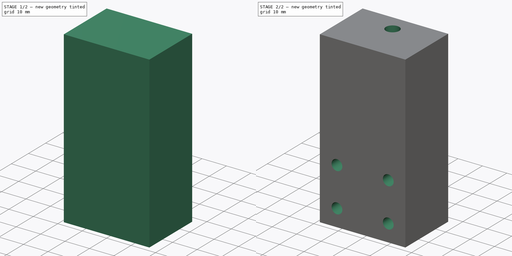
[diagram: build sequence overview — one tinted view per stage of 2, left to right]
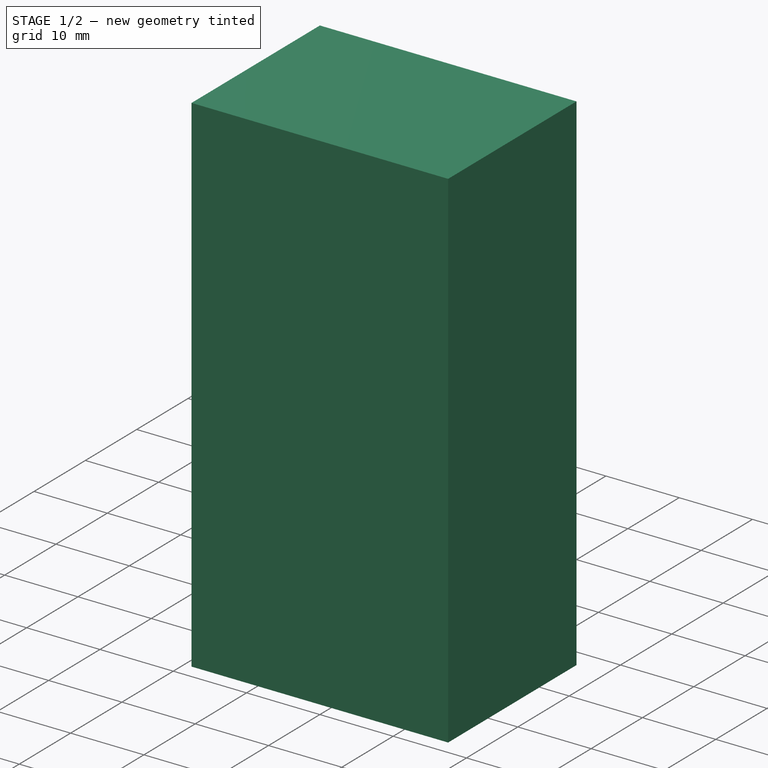
[diagram: stage 1 of 2 — iso view after this stage's code; geometry added in this stage tinted green]
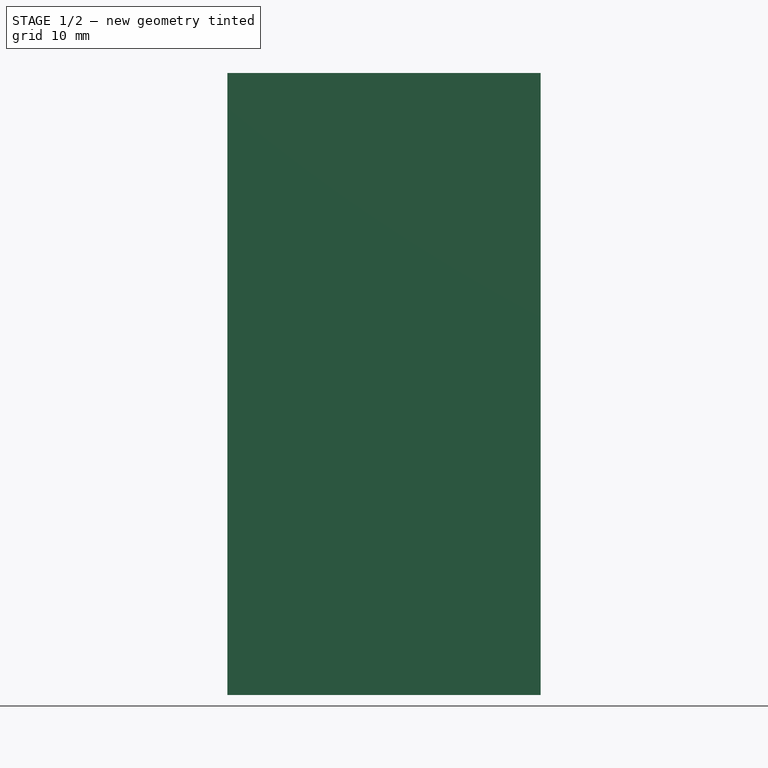
[diagram: stage 1 of 2 — front view after this stage's code; geometry added in this stage tinted green]
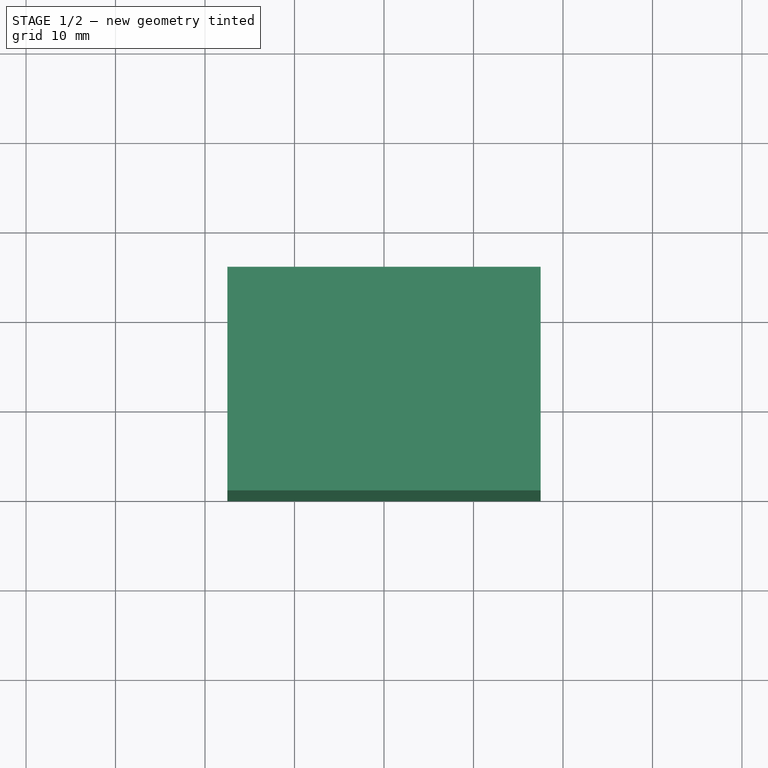
[diagram: stage 1 of 2 — top view after this stage's code; geometry added in this stage tinted green]
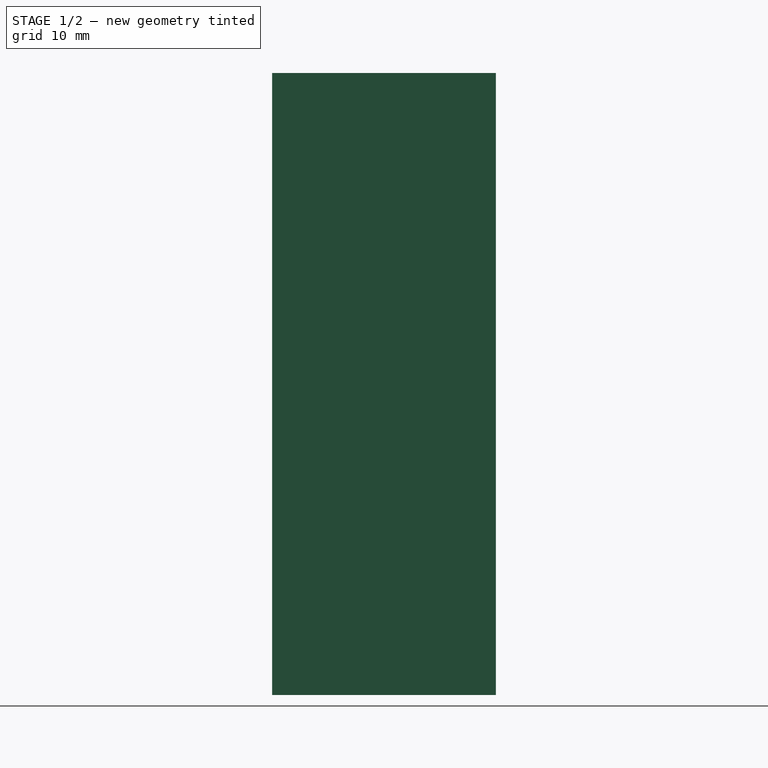
[diagram: stage 1 of 2 — right view after this stage's code; geometry added in this stage tinted green]
FCSTD DOCUMENT  (FreeCAD 0.18.4R)
Label: part7
License: All rights reserved
LicenseURL: http://en.wikipedia.org/wiki/All_rights_reserved
objects: Sketcher::SketchObject×4, PartDesign::Hole×2, PartDesign::Pad×1, PartDesign::Pocket×1, PartDesign::Body×1, App::Part×1
note: 13 computed .brp shape members not serialized (recipe doc carries the construction recipe); baked Part::Feature solids carry a one-line shape summary decoded from their .brp

FEATURE [Sketcher::SketchObject] Sketch
  MapMode = 5
  Placement = pos=(0,0,0) rot=(0.57735,0.57735,0.57735;2.0944rad)
  Support = -> [YZ_Plane001]
  sketch-geometry (4):
    g0: LineSegment StartX=30 StartY=-10 StartZ=0 EndX=30 EndY=-79.5 EndZ=0
    g1: LineSegment StartX=30 StartY=-79.5 StartZ=0 EndX=55 EndY=-79.5 EndZ=0
    g2: LineSegment StartX=55 StartY=-79.5 StartZ=0 EndX=55 EndY=-10 EndZ=0
    g3: LineSegment StartX=55 StartY=-10 StartZ=0 EndX=30 EndY=-10 EndZ=0
  constraints (12):
    c: Vertical(g0)
    c: Horizontal(g1)
    c: Vertical(g2)
    c: Horizontal(g3)
    c: Coincident(g0,g3)
    c: Coincident(g3,g2)
    c: Coincident(g1,g0)
    c: Coincident(g1,g2)
    c: DistanceX(g-1,g0) = 30
    c: DistanceX(g-1,g2) = 55
    c: DistanceY(g0,g-1) = 10
    c: DistanceY(g1,g-1) = 79.5
FEATURE [PartDesign::Pad] Pad
  Length = 35
  Length2 = 100
  Midplane = true
  Placement = pos=(0,0,0) rot=(0.57735,0.57735,0.57735;2.0944rad)
  Profile = -> Sketch
  Type = 0
FEATURE [Sketcher::SketchObject] Sketch002
  AttachmentOffset = pos=(0,0,-8) rot=(0,0,1;0rad)
  MapMode = 5
  Placement = pos=(1.3e-14,-1.2e-14,-18) rot=(0,0,-1;1.5708rad)
  sketch-geometry (5):
    g0: LineSegment StartX=-55 StartY=-4.25 StartZ=0 EndX=-55 EndY=4.25 EndZ=0
    g1: LineSegment StartX=-55 StartY=4.25 StartZ=0 EndX=-45.0463 EndY=4.25 EndZ=0
    g2: LineSegment StartX=-45.0463 StartY=4.25 StartZ=0 EndX=-42.5925 EndY=0 EndZ=0
    g3: LineSegment StartX=-42.5925 StartY=0 StartZ=0 EndX=-45.0463 EndY=-4.25 EndZ=0
    g4: LineSegment StartX=-45.0463 StartY=-4.25 StartZ=0 EndX=-55 EndY=-4.25 EndZ=0
  constraints (13):
    c: Coincident(g0,g1)
    c: Horizontal(g1)
    c: Coincident(g1,g2)
    c: Coincident(g2,g3)
    c: Coincident(g3,g4)
    c: Coincident(g4,g0)
    c: Symmetric(g0,g0,g-1)
    c: PointOnObject(g2,g-1)
    c: Symmetric(g1,g3,g-1)
    c: Angle(g1,g2) = 2.0944
    c: DistanceY(g0,g0) = 8.5
    c: DistanceX(g0,g-1) = 55
    c: DistanceX(g0,g2) = 12.4075
FEATURE [PartDesign::Pocket] Pocket
  BaseFeature = -> Pad
  Length = 4.5
  Length2 = 100
  Placement = pos=(0,0,0) rot=(0.57735,0.57735,0.57735;2.0944rad)
  Profile = -> Sketch002
  Type = 0
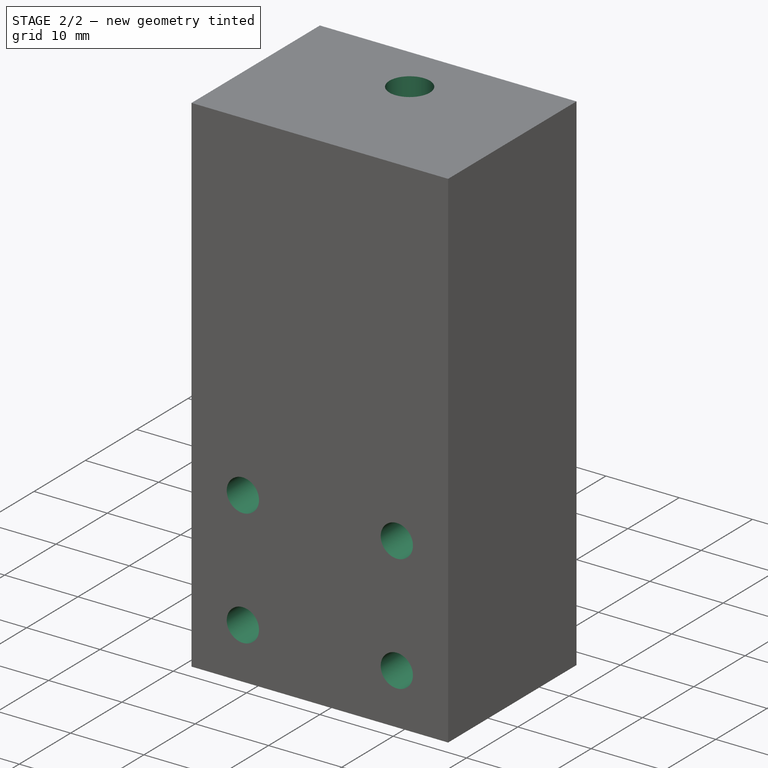
[diagram: stage 2 of 2 — iso view after this stage's code; geometry added in this stage tinted green]
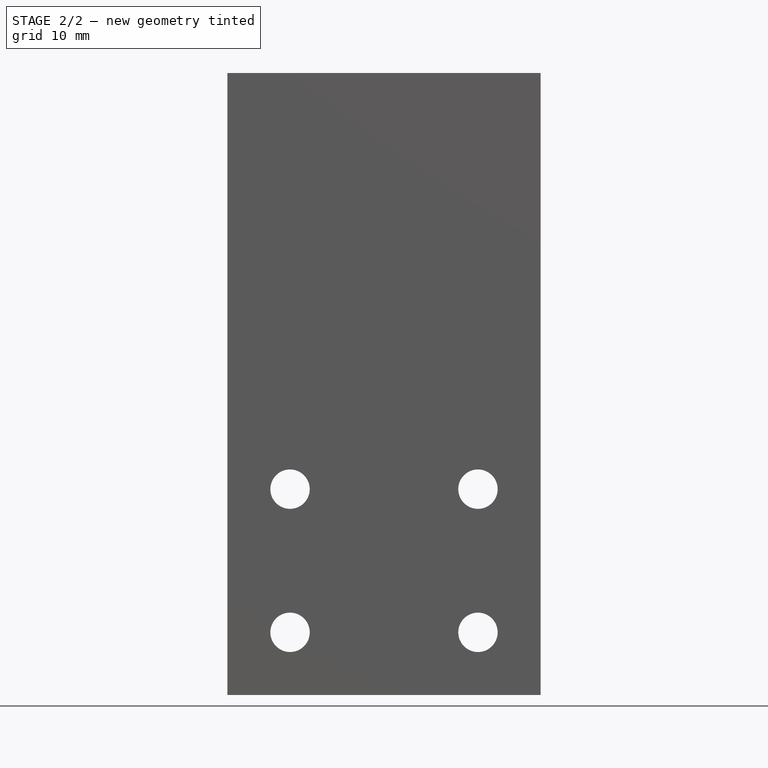
[diagram: stage 2 of 2 — front view after this stage's code; geometry added in this stage tinted green]
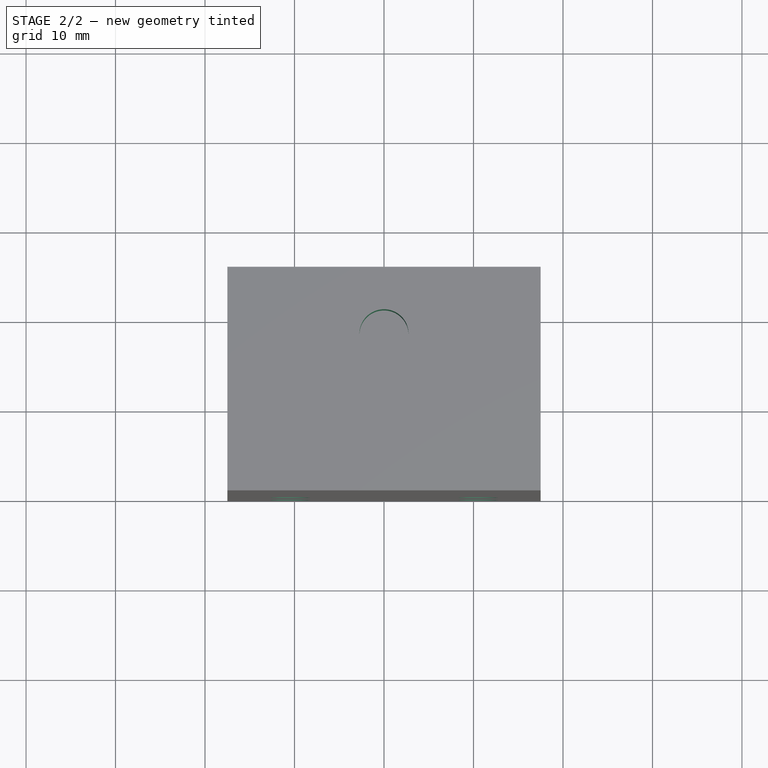
[diagram: stage 2 of 2 — top view after this stage's code; geometry added in this stage tinted green]
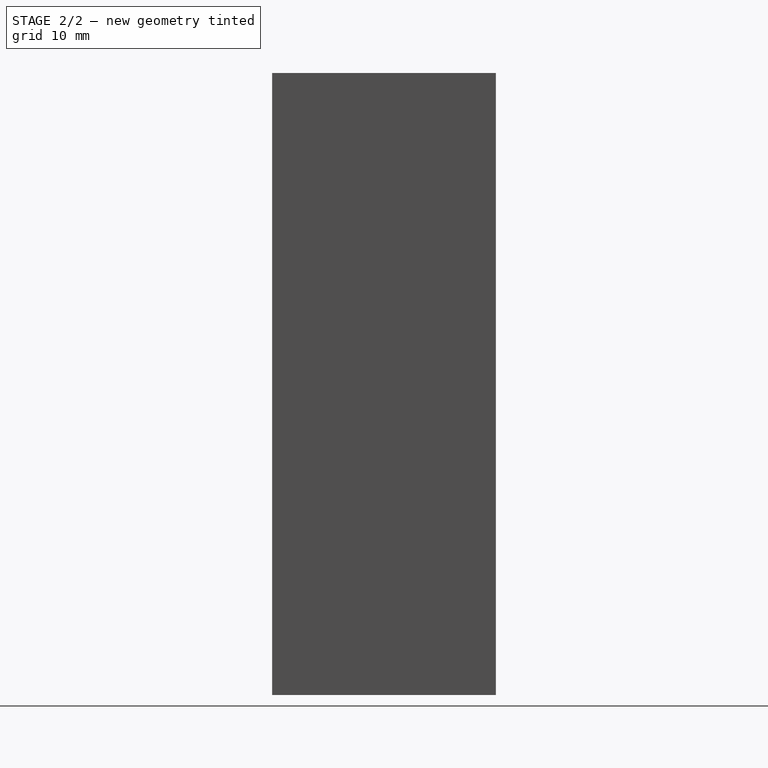
[diagram: stage 2 of 2 — right view after this stage's code; geometry added in this stage tinted green]
FEATURE [Sketcher::SketchObject] Sketch003
  MapMode = 5
  Placement = pos=(7.2e-15,-6.7e-15,-10) rot=(0,0,-1;1.5708rad)
  Support = -> [Pocket]
  sketch-geometry (1):
    g0: Circle CenterX=-47.5 CenterY=0 CenterZ=0 NormalX=0 NormalY=0 NormalZ=1 AngleXU=0 Radius=4.15112
  constraints (2):
    c: PointOnObject(g0,g-1)
    c: DistanceX(g0,g-1) = 47.5
FEATURE [PartDesign::Hole] Hole001
  BaseFeature = -> Pocket
  Depth = 12
  DepthType = 0
  Diameter = 5.5
  DrillPoint = 0
  DrillPointAngle = 118
  HoleCutCountersinkAngle = 90
  HoleCutDepth = 0
  HoleCutDiameter = 5
  HoleCutType = 0
  ModelActualThread = false
  Placement = pos=(0,0,0) rot=(0.57735,0.57735,0.57735;2.0944rad)
  Profile = -> Sketch003
  Tapered = false
  TaperedAngle = 90
  ThreadAngle = 0
  ThreadClass = 0
  ThreadCutOffInner = 0
  ThreadCutOffOuter = 0
  ThreadDirection = 0
  ThreadFit = 0
  ThreadPitch = 0
  ThreadSize = 6
  ThreadType = 1
  Threaded = false
FEATURE [Sketcher::SketchObject] Sketch004
  MapMode = 5
  Placement = pos=(2.44e-14,55,-5.5e-14) rot=(0.57735,0.57735,0.57735;4.18879rad)
  Support = -> [Hole001]
  sketch-geometry (4):
    g0: Circle CenterX=-72.5 CenterY=10.5 CenterZ=0 NormalX=0 NormalY=0 NormalZ=1 AngleXU=0 Radius=3.22637
    g1: Circle CenterX=-56.5 CenterY=10.5 CenterZ=0 NormalX=0 NormalY=0 NormalZ=1 AngleXU=0 Radius=5.75257
    g2: Circle CenterX=-72.5 CenterY=-10.5 CenterZ=0 NormalX=0 NormalY=0 NormalZ=1 AngleXU=0 Radius=4.87574
    g3: Circle CenterX=-56.5 CenterY=-10.5 CenterZ=0 NormalX=0 NormalY=0 NormalZ=1 AngleXU=0 Radius=6.25907
  constraints (6):
    c: Symmetric(g0,g2,g-1)
    c: Symmetric(g1,g3,g-1)
    c: DistanceX(g0,g1) = 16
    c: DistanceY(g2,g0) = 21
    c: DistanceY(g3,g1) = 21
    c: DistanceX(g0,g-1) = 72.5
FEATURE [PartDesign::Hole] Hole
  BaseFeature = -> Hole001
  Depth = 25
  DepthType = 1
  Diameter = 4.4
  DrillPoint = 0
  DrillPointAngle = 118
  HoleCutCountersinkAngle = 90
  HoleCutDepth = 0
  HoleCutDiameter = 4
  HoleCutType = 0
  ModelActualThread = false
  Placement = pos=(0,0,0) rot=(0.57735,0.57735,0.57735;2.0944rad)
  Profile = -> Sketch004
  Tapered = false
  TaperedAngle = 90
  ThreadAngle = 0
  ThreadClass = 0
  ThreadCutOffInner = 0
  ThreadCutOffOuter = 0
  ThreadDirection = 0
  ThreadFit = 0
  ThreadPitch = 0
  ThreadSize = 5
  ThreadType = 1
  Threaded = false
FEATURE [PartDesign::Body] Body
  Group = -> [Sketch,Pad,Sketch002,Pocket,Sketch003,Hole001,Sketch004,Hole]
  Origin = -> Origin001
  Tip = -> Hole
FEATURE [App::Part] Part  label="part7"
  Group = -> [Body]
  Origin = -> Origin
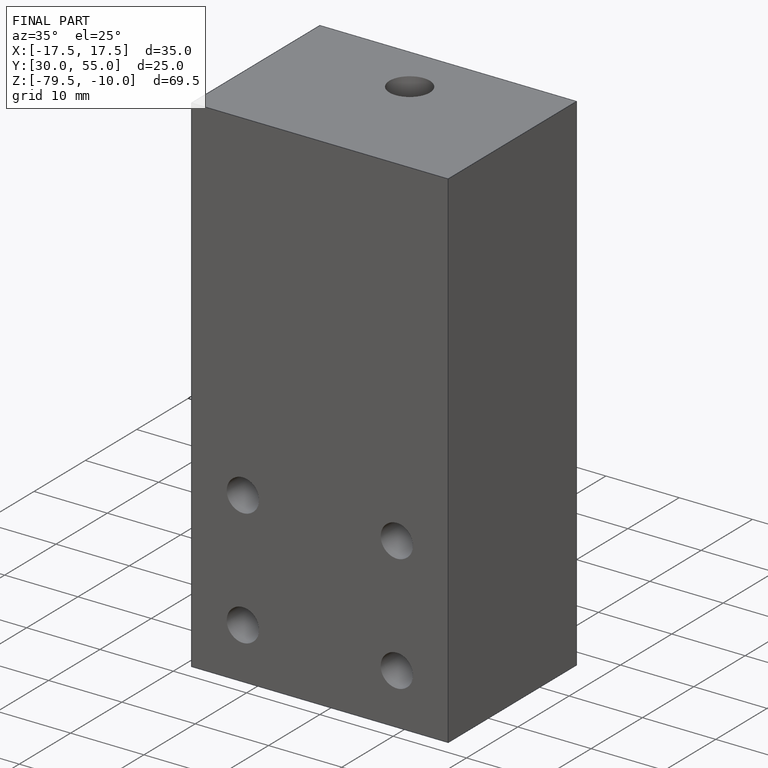
[diagram: finished part — iso view with bounding-box wireframe]
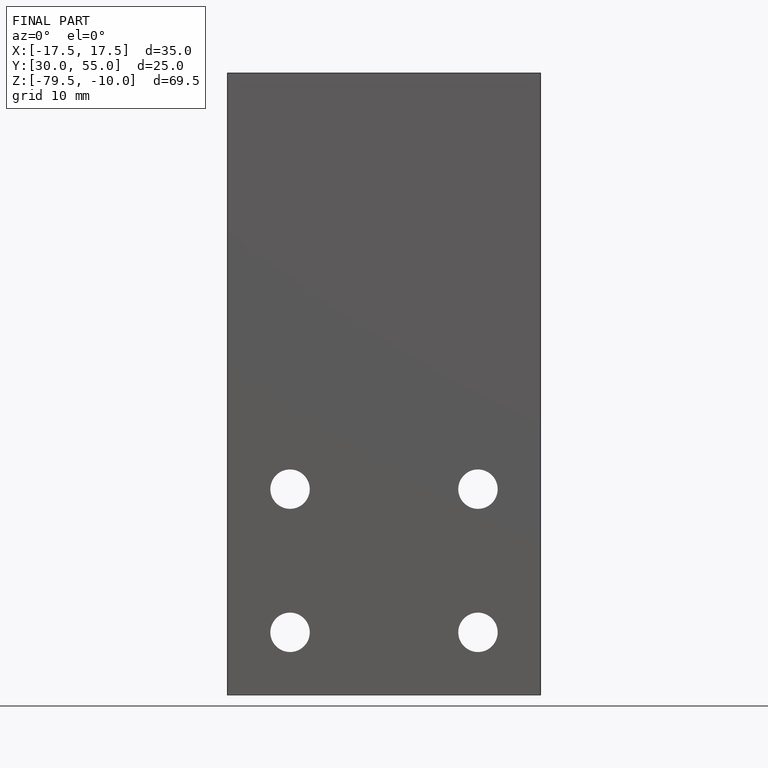
[diagram: finished part — front view with bounding-box wireframe]
